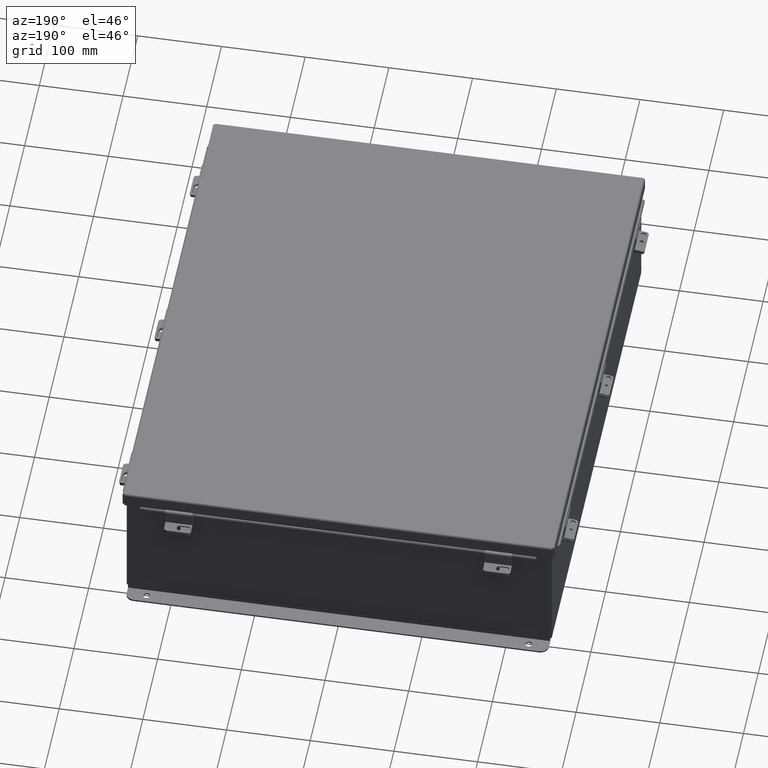
[diagram: clean part render]
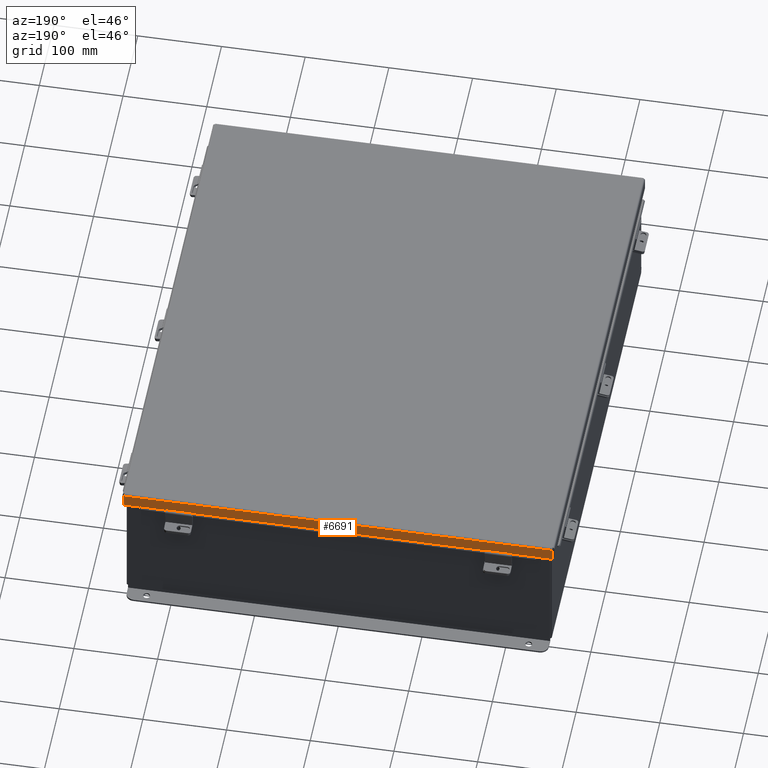
[diagram: same view with one face highlighted and labeled with its STEP entity id]
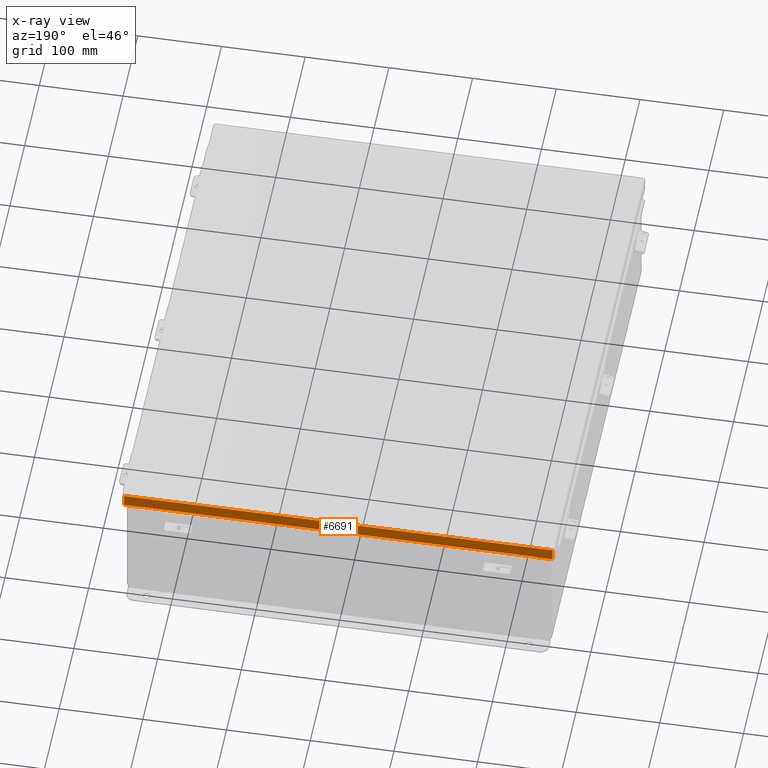
[diagram: x-ray of the same camera — body ghosted, the highlighted face saturated]
A machine part, auxiliary view. The second image highlights one B-rep face of the part: STEP entity #6691.
The next image is the same camera in x-ray: the body ghosted, the highlighted face saturated — about 0% of this face is hidden behind the body in this view.
In plain terms, the highlighted planar face has unit normal (-0, -1, -0).
Its self-contained STEP definition (entity closure, byte-faithful):
#91 = CARTESIAN_POINT ( 'NONE',  ( 9.324478932188171100, 12.15625000000000400, 0.5967115427318804300 ) ) ;
#168 = EDGE_CURVE ( 'NONE', #1137, #3732, #7357, .T. ) ;
#184 = EDGE_CURVE ( 'NONE', #5199, #7283, #4551, .T. ) ;
#325 = AXIS2_PLACEMENT_3D ( 'NONE', #7496, #2859, #8295 ) ;
#501 = CARTESIAN_POINT ( 'NONE',  ( 10.15625000000003600, 12.15625000000000000, 0.01300000000000010700 ) ) ;
#531 = CARTESIAN_POINT ( 'NONE',  ( -9.324478932188164000, 12.15625000000000200, 0.5967115427318815400 ) ) ;
#689 = ORIENTED_EDGE ( 'NONE', *, *, #8396, .T. ) ;
#1137 = VERTEX_POINT ( 'NONE', #5464 ) ;
#1684 = EDGE_LOOP ( 'NONE', ( #5971, #7344, #4594, #1937, #9808, #689, #3544, #2433 ) ) ;
#1700 = DIRECTION ( 'NONE',  ( -1.000000000000000000, -3.215975411700707400E-030, -0.0000000000000000000 ) ) ;
#1909 = DIRECTION ( 'NONE',  ( -0.0000000000000000000, 3.569293475308532400E-015, 1.000000000000000000 ) ) ;
#1937 = ORIENTED_EDGE ( 'NONE', *, *, #8717, .F. ) ;
#1963 = LINE ( 'NONE', #501, #9986 ) ;
#1971 = CARTESIAN_POINT ( 'NONE',  ( -10.07447893218816600, 12.15625000000000200, 0.6123000000000005100 ) ) ;
#2433 = ORIENTED_EDGE ( 'NONE', *, *, #4636, .F. ) ;
#2509 = VECTOR ( 'NONE', #1909, 39.37007874015748100 ) ;
#2859 = DIRECTION ( 'NONE',  ( -3.347543324056399800E-030, -1.000000000000000000, 3.569293475308532400E-015 ) ) ;
#3089 = CARTESIAN_POINT ( 'NONE',  ( -9.324478932188164000, 12.15625000000000400, 0.5967115427318815400 ) ) ;
#3191 = CARTESIAN_POINT ( 'NONE',  ( -9.324478932188165800, 12.15625000000000200, 0.6123000000000005100 ) ) ;
#3215 = CARTESIAN_POINT ( 'NONE',  ( 6.402768735150616900E-018, 12.15625000000000200, 0.6122999999999994000 ) ) ;
#3388 = EDGE_CURVE ( 'NONE', #5199, #3732, #8141, .T. ) ;
#3398 = VERTEX_POINT ( 'NONE', #4757 ) ;
#3537 = CARTESIAN_POINT ( 'NONE',  ( 10.07447893218817100, 12.15625000000000200, 0.6122999999999994000 ) ) ;
#3544 = ORIENTED_EDGE ( 'NONE', *, *, #3902, .F. ) ;
#3563 = DIRECTION ( 'NONE',  ( 1.000000000000000000, 3.215975411700707400E-030, -0.0000000000000000000 ) ) ;
#3600 = PLANE ( 'NONE',  #325 ) ;
#3607 = CARTESIAN_POINT ( 'NONE',  ( -10.07447893218816600, 12.15625000000000000, -4.370956789862821100E-014 ) ) ;
#3732 = VERTEX_POINT ( 'NONE', #3537 ) ;
#3796 = LINE ( 'NONE', #3607, #6831 ) ;
#3902 = EDGE_CURVE ( 'NONE', #7380, #4847, #9833, .T. ) ;
#4106 = LINE ( 'NONE', #91, #5897 ) ;
#4130 = DIRECTION ( 'NONE',  ( 1.000000000000000000, 3.215538059845590000E-030, 3.362274453740340600E-018 ) ) ;
#4393 = CARTESIAN_POINT ( 'NONE',  ( 10.07447893218817100, 12.15625000000000000, 0.0000000000000000000 ) ) ;
#4551 = LINE ( 'NONE', #7230, #6874 ) ;
#4594 = ORIENTED_EDGE ( 'NONE', *, *, #168, .F. ) ;
#4636 = EDGE_CURVE ( 'NONE', #7283, #7380, #4106, .T. ) ;
#4686 = DIRECTION ( 'NONE',  ( 7.009925220121354700E-014, 1.401985044024265100E-013, -1.000000000000000000 ) ) ;
#4711 = VECTOR ( 'NONE', #8651, 39.37007874015748100 ) ;
#4757 = CARTESIAN_POINT ( 'NONE',  ( -10.07447893218816600, 12.15625000000000000, 0.01300000000000010700 ) ) ;
#4847 = VERTEX_POINT ( 'NONE', #3191 ) ;
#5199 = VERTEX_POINT ( 'NONE', #9130 ) ;
#5464 = CARTESIAN_POINT ( 'NONE',  ( 10.07447893218817100, 12.15625000000000000, 0.01300000000000010700 ) ) ;
#5646 = VECTOR ( 'NONE', #4130, 39.37007874015748100 ) ;
#5897 = VECTOR ( 'NONE', #1700, 39.37007874015748100 ) ;
#5971 = ORIENTED_EDGE ( 'NONE', *, *, #184, .F. ) ;
#6045 = EDGE_CURVE ( 'NONE', #3398, #7277, #3796, .T. ) ;
#6139 = VECTOR ( 'NONE', #7028, 39.37007874015748100 ) ;
#6691 = ADVANCED_FACE ( 'NONE', ( #9643 ), #3600, .F. ) ;
#6758 = DIRECTION ( 'NONE',  ( 0.0000000000000000000, 3.569293475308532400E-015, 1.000000000000000000 ) ) ;
#6831 = VECTOR ( 'NONE', #6758, 39.37007874015748100 ) ;
#6874 = VECTOR ( 'NONE', #4686, 39.37007874015748100 ) ;
#7028 = DIRECTION ( 'NONE',  ( -7.009925220121077000E-014, -1.401985044024209900E-013, 1.000000000000000000 ) ) ;
#7230 = CARTESIAN_POINT ( 'NONE',  ( 9.324478932188171100, 12.15625000000000200, 0.6122999999999994000 ) ) ;
#7277 = VERTEX_POINT ( 'NONE', #1971 ) ;
#7283 = VERTEX_POINT ( 'NONE', #7390 ) ;
#7344 = ORIENTED_EDGE ( 'NONE', *, *, #3388, .T. ) ;
#7357 = LINE ( 'NONE', #4393, #2509 ) ;
#7380 = VERTEX_POINT ( 'NONE', #531 ) ;
#7390 = CARTESIAN_POINT ( 'NONE',  ( 9.324478932188171100, 12.15625000000000200, 0.5967115427318804300 ) ) ;
#7496 = CARTESIAN_POINT ( 'NONE',  ( 0.0000000000000000000, 12.15625000000000000, -4.370956789862821100E-014 ) ) ;
#7526 = LINE ( 'NONE', #3215, #4711 ) ;
#8141 = LINE ( 'NONE', #8336, #5646 ) ;
#8295 = DIRECTION ( 'NONE',  ( 0.0000000000000000000, -3.569293475308532400E-015, -1.000000000000000000 ) ) ;
#8336 = CARTESIAN_POINT ( 'NONE',  ( 6.402768735150616900E-018, 12.15625000000000200, 0.6122999999999994000 ) ) ;
#8396 = EDGE_CURVE ( 'NONE', #7277, #4847, #7526, .T. ) ;
#8651 = DIRECTION ( 'NONE',  ( 1.000000000000000000, 3.215538059845590000E-030, 3.362274453740340600E-018 ) ) ;
#8717 = EDGE_CURVE ( 'NONE', #3398, #1137, #1963, .T. ) ;
#9130 = CARTESIAN_POINT ( 'NONE',  ( 9.324478932188171100, 12.15625000000000200, 0.6122999999999994000 ) ) ;
#9643 = FACE_OUTER_BOUND ( 'NONE', #1684, .T. ) ;
#9808 = ORIENTED_EDGE ( 'NONE', *, *, #6045, .T. ) ;
#9833 = LINE ( 'NONE', #3089, #6139 ) ;
#9986 = VECTOR ( 'NONE', #3563, 39.37007874015748100 ) ;